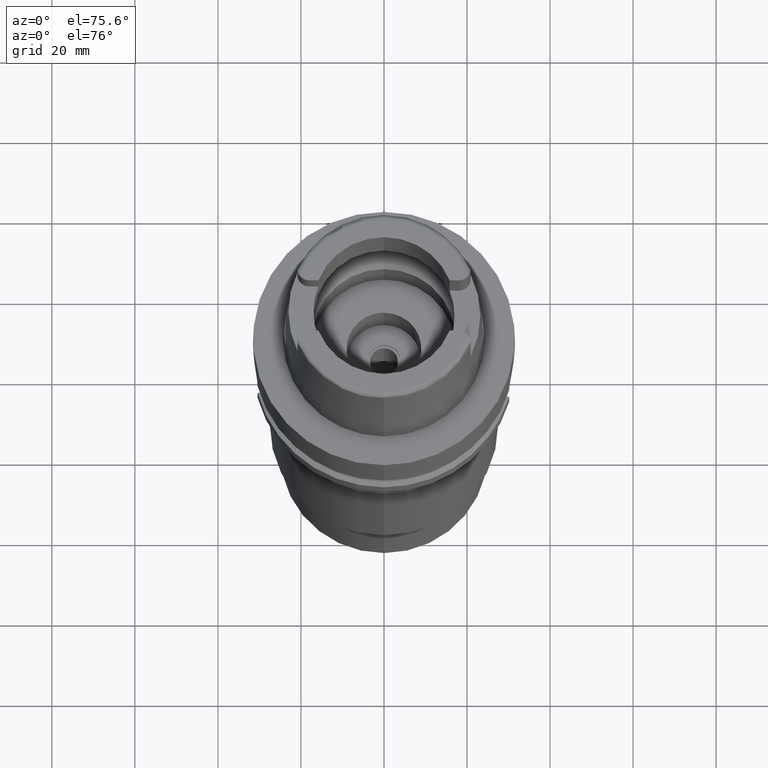
[diagram: clean part render]
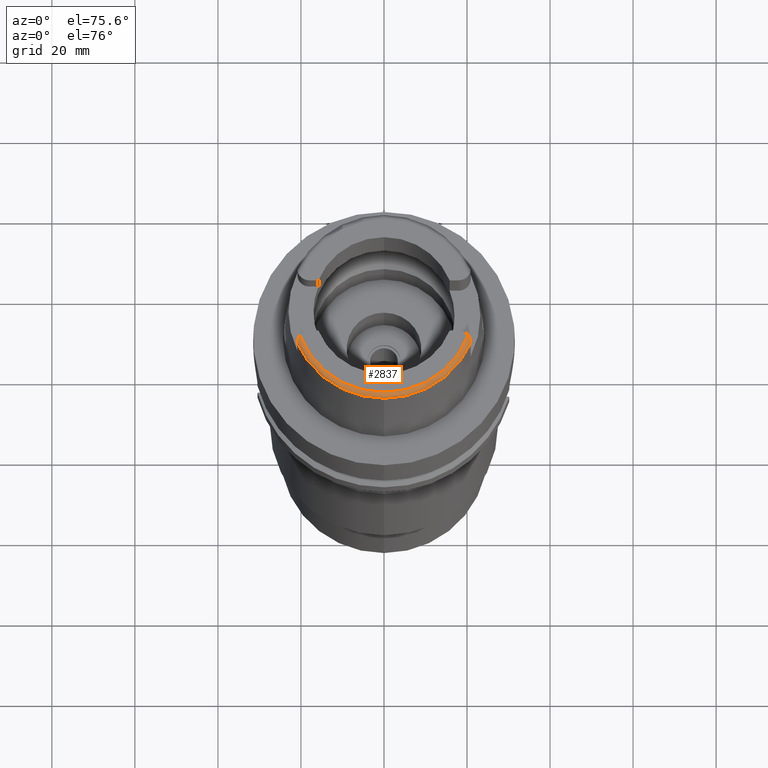
[diagram: same view with one face highlighted and labeled with its STEP entity id]
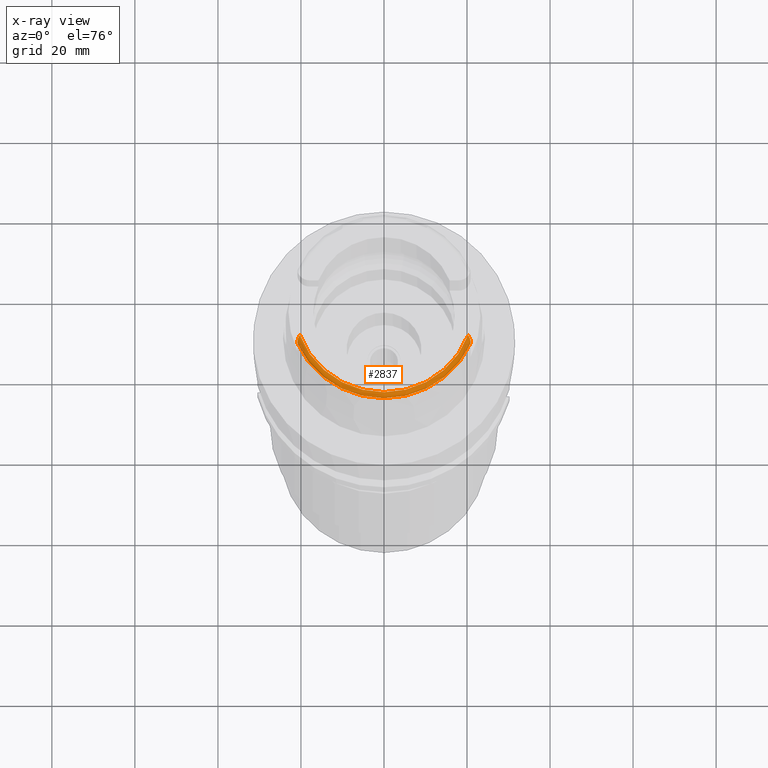
[diagram: x-ray of the same camera — body ghosted, the highlighted face saturated]
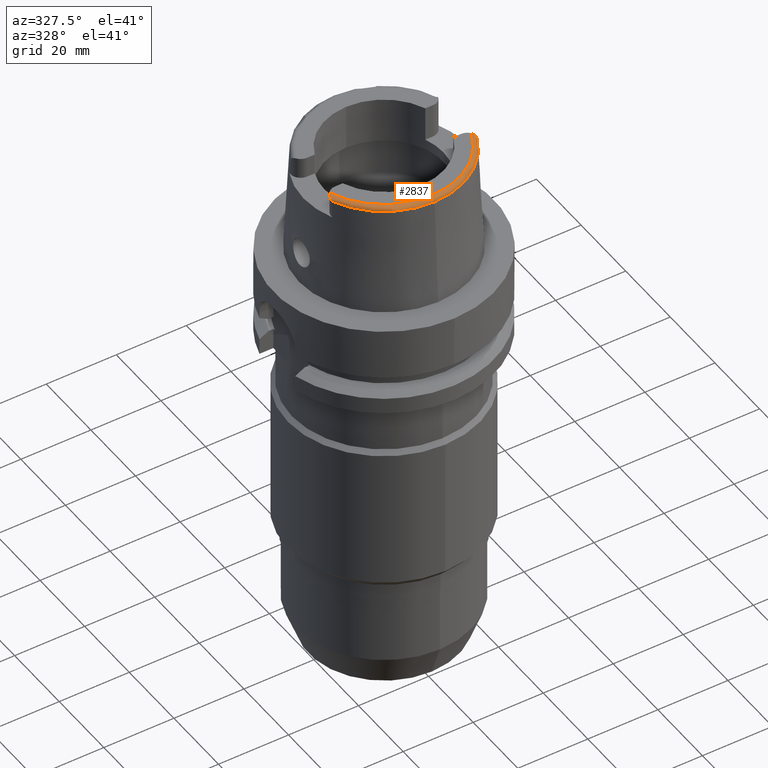
[diagram: same view with one face highlighted and labeled with its STEP entity id]
A machine part, auxiliary view. The second image highlights one B-rep face of the part: STEP entity #2837.
The next image is the same camera in x-ray: the body ghosted, the highlighted face saturated — about 0% of this face is hidden behind the body in this view.
A second angle (auxiliary view) of the same face is appended — the face is thin or edge-on in the first view.
In plain terms, the highlighted toroidal blend (fillet) surface has major radius 21.5735 mm and minor (blend) radius 1.2 mm.
Its self-contained STEP definition (entity closure, byte-faithful):
#138=CARTESIAN_POINT('',(0.E0,0.E0,3.2E1));
#139=DIRECTION('',(0.E0,0.E0,-1.E0));
#140=DIRECTION('',(9.395199128801E-1,-3.424942821446E-1,0.E0));
#141=AXIS2_PLACEMENT_3D('',#138,#139,#140);
#175=CARTESIAN_POINT('',(-2.086974104061E1,-9.111384044678E0,3.085992600048E1));
#245=CARTESIAN_POINT('',(-2.086974104061E1,-9.111384044678E0,3.085992600048E1));
#246=CARTESIAN_POINT('',(-2.086967978479E1,-9.106815914010E0,3.089760295933E1));
#247=CARTESIAN_POINT('',(-2.086945080286E1,-9.088995386239E0,3.097482214906E1));
#248=CARTESIAN_POINT('',(-2.086783167195E1,-9.030866349823E0,3.109849300428E1));
#249=CARTESIAN_POINT('',(-2.086322221562E1,-8.944091743776E0,3.122174967017E1));
#250=CARTESIAN_POINT('',(-2.085297871351E1,-8.828642380834E0,3.134655940718E1));
#251=CARTESIAN_POINT('',(-2.083403211087E1,-8.687360828523E0,3.147018411212E1));
#252=CARTESIAN_POINT('',(-2.080191186563E1,-8.518140011325E0,3.159391016986E1));
#253=CARTESIAN_POINT('',(-2.075072128380E1,-8.319740744698E0,3.171566632634E1));
#254=CARTESIAN_POINT('',(-2.067242157498E1,-8.091030912758E0,3.183088479020E1));
#255=CARTESIAN_POINT('',(-2.056069500443E1,-7.841232965543E0,3.192730566798E1));
#256=CARTESIAN_POINT('',(-2.041954333658E1,-7.595455916141E0,3.198788702685E1));
#257=CARTESIAN_POINT('',(-2.031992495439E1,-7.455048288272E0,3.2E1));
#258=CARTESIAN_POINT('',(-2.026871835884E1,-7.388795116670E0,3.2E1));
#263=CARTESIAN_POINT('',(2.026871835884E1,-7.388795116670E0,3.2E1));
#264=CARTESIAN_POINT('',(2.031993739870E1,-7.455064389226E0,3.2E1));
#265=CARTESIAN_POINT('',(2.041955479103E1,-7.595479628573E0,3.198787854873E1));
#266=CARTESIAN_POINT('',(2.056062303346E1,-7.841105102634E0,3.192733889065E1));
#267=CARTESIAN_POINT('',(2.067232021676E1,-8.090777677508E0,3.183099551218E1));
#268=CARTESIAN_POINT('',(2.075064736684E1,-8.319492711217E0,3.171580459728E1));
#269=CARTESIAN_POINT('',(2.080185885196E1,-8.517900663676E0,3.159407024072E1));
#270=CARTESIAN_POINT('',(2.083400872179E1,-8.687201846741E0,3.147031638651E1));
#271=CARTESIAN_POINT('',(2.085297606444E1,-8.828610337807E0,3.134659314877E1));
#272=CARTESIAN_POINT('',(2.086322043844E1,-8.944064685723E0,3.122178628256E1));
#273=CARTESIAN_POINT('',(2.086783289008E1,-9.030890209692E0,3.109845575406E1));
#274=CARTESIAN_POINT('',(2.086945049589E1,-9.088991758235E0,3.097482444238E1));
#275=CARTESIAN_POINT('',(2.086967985546E1,-9.106815710770E0,3.089760194438E1));
#276=CARTESIAN_POINT('',(2.086974110889E1,-9.111383544988E0,3.085992740154E1));
#281=CARTESIAN_POINT('',(0.E0,0.E0,3.085992712280E1));
#282=DIRECTION('',(0.E0,0.E0,-1.E0));
#283=DIRECTION('',(9.164655183266E-1,-4.001136759952E-1,0.E0));
#284=AXIS2_PLACEMENT_3D('',#281,#282,#283);
#289=CARTESIAN_POINT('',(0.E0,0.E0,3.085992712280E1));
#290=DIRECTION('',(0.E0,0.E0,-1.E0));
#291=DIRECTION('',(0.E0,-1.E0,0.E0));
#292=AXIS2_PLACEMENT_3D('',#289,#290,#291);
#2379=CARTESIAN_POINT('',(-2.026871835884E1,-7.388795116669E0,3.2E1));
#2380=VERTEX_POINT('',#2379);
#2385=CARTESIAN_POINT('',(2.026871835884E1,-7.388795116670E0,3.2E1));
#2386=VERTEX_POINT('',#2385);
#2390=VERTEX_POINT('',#175);
#2391=CARTESIAN_POINT('',(0.E0,-2.277198729362E1,3.085992712280E1));
#2392=VERTEX_POINT('',#2391);
#2403=VERTEX_POINT('',#276);
#2823=CARTESIAN_POINT('',(0.E0,0.E0,3.08E1));
#2824=DIRECTION('',(0.E0,0.E0,1.E0));
#2825=DIRECTION('',(-6.539142454763E-4,-9.999997861981E-1,0.E0));
#2826=AXIS2_PLACEMENT_3D('',#2823,#2824,#2825);
#2827=TOROIDAL_SURFACE('',#2826,2.157348458609E1,1.2E0);
#2828=ORIENTED_EDGE('',*,*,#2775,.T.);
#2829=ORIENTED_EDGE('',*,*,#2758,.F.);
#2831=ORIENTED_EDGE('',*,*,#2830,.T.);
#2833=ORIENTED_EDGE('',*,*,#2832,.T.);
#2834=ORIENTED_EDGE('',*,*,#2789,.T.);
#2835=EDGE_LOOP('',(#2828,#2829,#2831,#2833,#2834));
#2836=FACE_OUTER_BOUND('',#2835,.F.);
#142=CIRCLE('',#141,2.157348458609E1);
#259=B_SPLINE_CURVE_WITH_KNOTS('',3,(#245,#246,#247,#248,#249,#250,#251,#252,
#253,#254,#255,#256,#257,#258),.UNSPECIFIED.,.F.,.F.,(4,1,1,1,1,1,1,1,1,1,1,4),(
0.E0,9.090909090909E-2,1.818181818182E-1,2.727272727273E-1,3.636363636364E-1,
4.545454545455E-1,5.454545454545E-1,6.363636363636E-1,7.272727272727E-1,
8.181818181818E-1,9.090909090909E-1,1.E0),.UNSPECIFIED.);
#277=B_SPLINE_CURVE_WITH_KNOTS('',3,(#263,#264,#265,#266,#267,#268,#269,#270,
#271,#272,#273,#274,#275,#276),.UNSPECIFIED.,.F.,.F.,(4,1,1,1,1,1,1,1,1,1,1,4),(
0.E0,9.090909090909E-2,1.818181818182E-1,2.727272727273E-1,3.636363636364E-1,
4.545454545455E-1,5.454545454545E-1,6.363636363636E-1,7.272727272727E-1,
8.181818181818E-1,9.090909090909E-1,1.E0),.UNSPECIFIED.);
#285=CIRCLE('',#284,2.277198729362E1);
#293=CIRCLE('',#292,2.277198729362E1);
#2758=EDGE_CURVE('',#2386,#2380,#142,.T.);
#2775=EDGE_CURVE('',#2390,#2380,#259,.T.);
#2789=EDGE_CURVE('',#2392,#2390,#293,.T.);
#2830=EDGE_CURVE('',#2386,#2403,#277,.T.);
#2832=EDGE_CURVE('',#2403,#2392,#285,.T.);
#2837=ADVANCED_FACE('',(#2836),#2827,.T.);